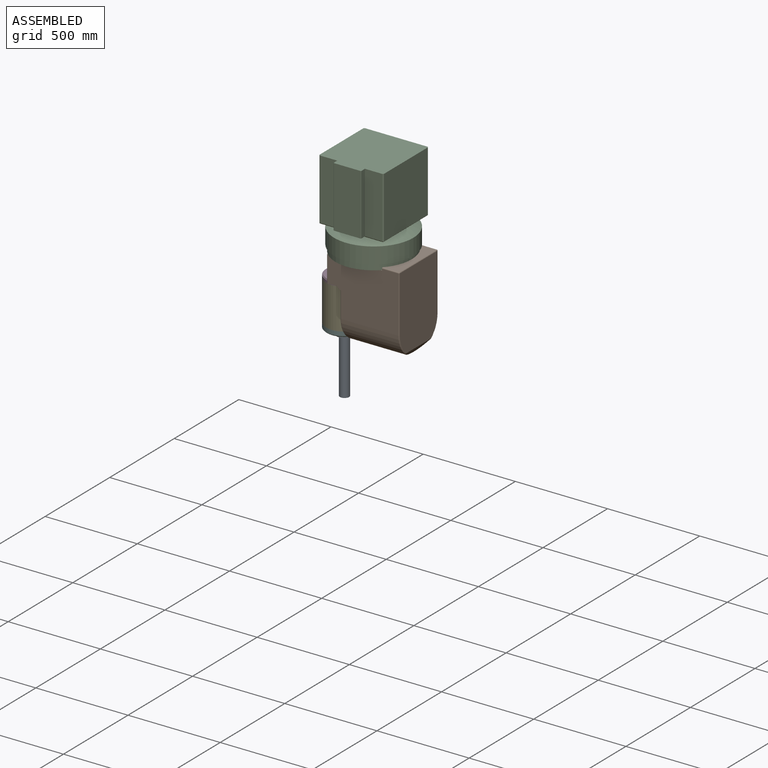
[diagram: assembled view]
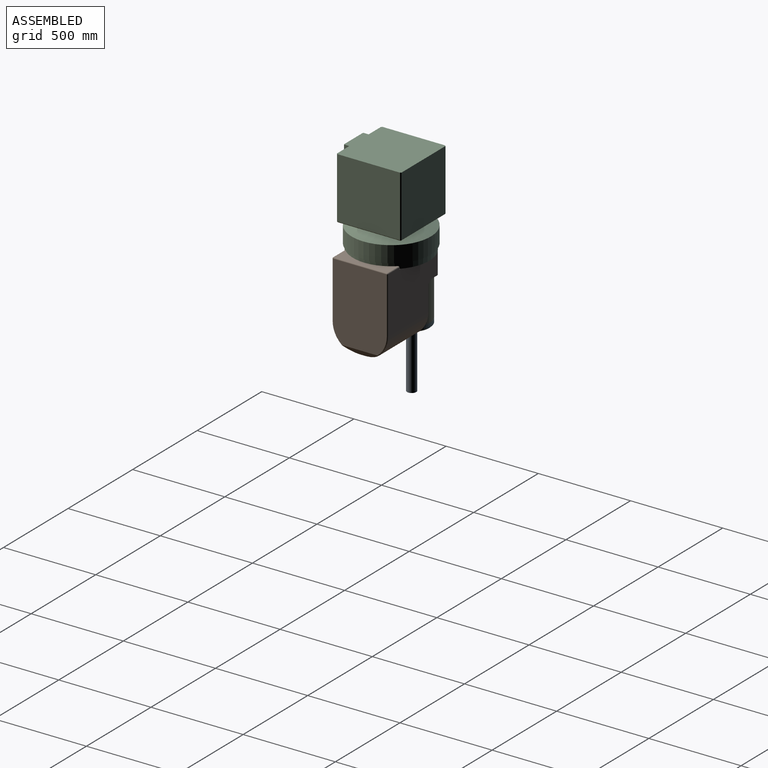
[diagram: assembled view, second angle]
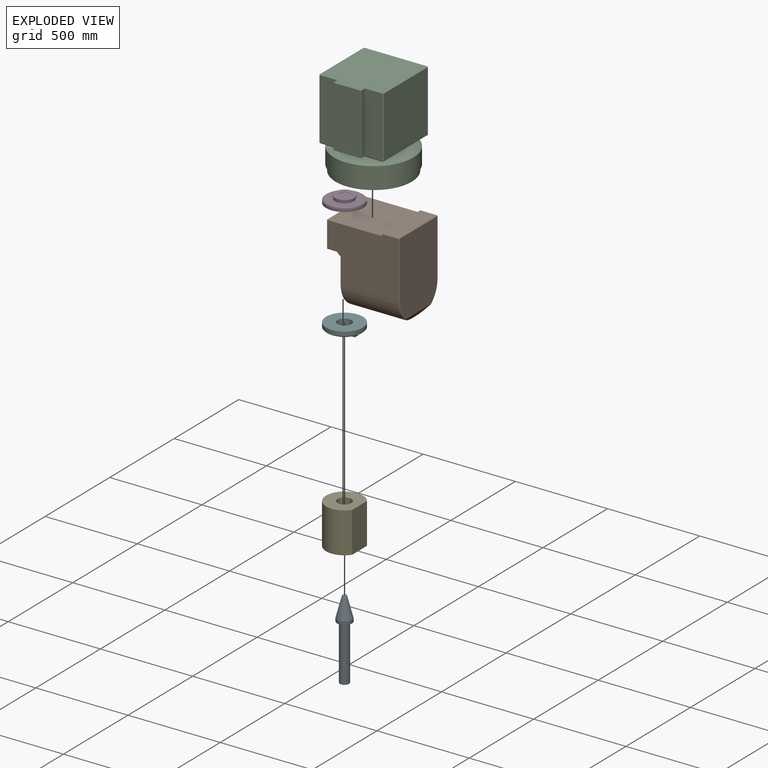
[diagram: exploded view]
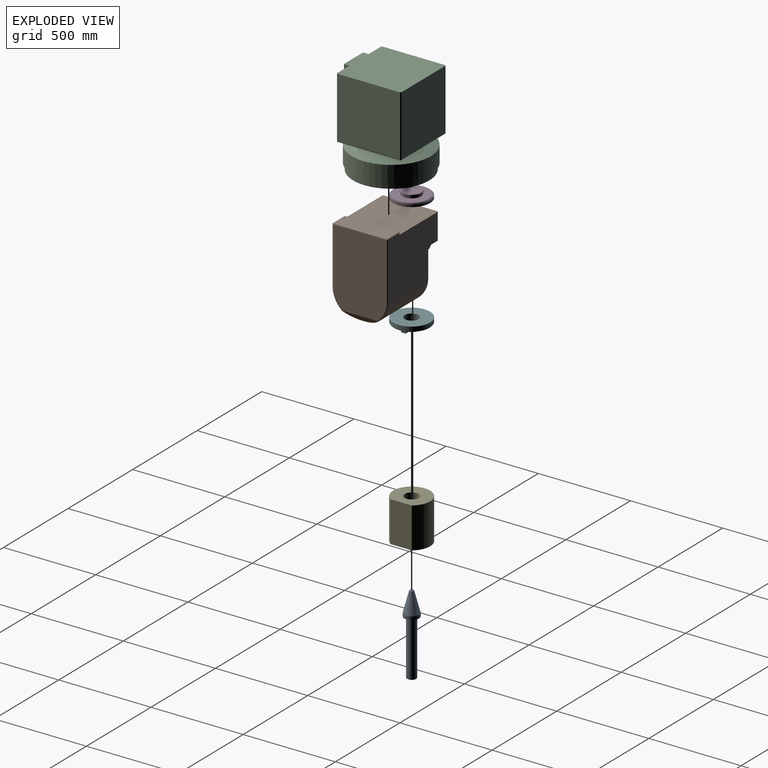
[diagram: exploded view, second angle]
ASSEMBLY  parts=6 mates=5
PART A: 11 faces, bbox 80.7x80.7x442.3 mm
  f0: cylinder r=40.34mm len=80.68mm, axis (0,0,1), area 4461mm2, adj f1,f10
  f1: cone r=40.34mm half-angle=14.8deg, axis (0,0,-1), area 18466mm2, adj f0,f2
  f2: plane 22.2x22.2mm, normal (0,0,1), area 376.6mm2, adj f1,f3
  f3: cylinder r=1.81mm len=9.98mm, axis (0,0,1), area 113.7mm2, adj f2,f4
  f4: plane 6.88x6.88mm, normal (0,0,-1), area 26.9mm2, adj f3,f5
  f5: cylinder r=3.44mm len=6.88mm, axis (0,0,1), area 44.8mm2, adj f4,f6
  f6: cone r=2.26mm half-angle=28.1deg, axis (0,0,-1), area 45mm2, adj f5,f7
  f7: plane 4.51x4.51mm, normal (0,0,1), area 16mm2, adj f6
  f8: plane 50x50mm, normal (0,0,-1), area 1963.5mm2, adj f9
  f9: cylinder r=25mm len=300mm, axis (0,0,1), area 47123.9mm2, adj f8,f10
  f10: plane 80.68x80.68mm, normal (0,0,-1), area 3149.1mm2, adj f0,f9
PART B: 42 faces, bbox 394.1x323.6x462.1 mm
  f0: plane 290x137.37mm, normal (-1,0,0), area 28709.2mm2, adj f9,f19,f20,f38
  f1: plane 54.84x5mm, normal (0,0,-1), area 268.9mm2, adj f2,f14,f20,f37
  f2: plane 15.07x15.04mm, normal (-0.71,0,-0.71), area 106.4mm2, adj f1,f3,f14,f37
  f3: plane 8.64x5mm, normal (0,0,-1), area 23.6mm2, adj f2,f14,f23,f37
  f4: plane 287.35x20mm, normal (0,0,-1), area 5747.1mm2, adj f21,f22,f25,f30
  f5: plane 194.72x33.14mm, normal (0.81,0,-0.59), area 5646.8mm2, adj f6,f28,f29,f30,f31,f32
  f6: plane 410.35x290mm, normal (1,0,0), area 115767mm2, adj f5,f16,f17,f18,f28,f32
  f7: plane 290x88.59mm, normal (0,0,1), area 25690.5mm2, adj f8,f18,f33,f35
  f8: plane 300x13.78mm, normal (-1,0,0), area 4124.7mm2, adj f7,f9,f14,f15,f33,f35
  f9: plane 300x299.94mm, normal (0,0,1), area 89970.1mm2, adj f0,f8,f14,f15,f19,f20
  f10: plane 54.84x5mm, normal (0,0,-1), area 268.9mm2, adj f11,f15,f19,f39
  f11: plane 15.07x15.04mm, normal (-0.71,0,-0.71), area 106.4mm2, adj f10,f12,f15,f39
  f12: plane 8.64x5mm, normal (0,0,-1), area 23.6mm2, adj f11,f15,f27,f39
  f13: plane 290x274.69mm, normal (-1,0,0), area 71838.9mm2, adj f23,f24,f25,f26,f27,f40
  f14: plane 383.52x305mm, normal (0,-1,0), area 103245.8mm2, adj f1,f2,f3,f8,f9,f16,f20,f22
  f15: plane 383.52x305mm, normal (0,1,0), area 103245.8mm2, adj f8,f9,f10,f11,f12,f17,f19,f21
  f16: cylinder r=5mm len=305mm, axis (0,0,-1), area 2395.5mm2, adj f6,f14,f28,f36
  f17: cylinder r=5mm len=305mm, axis (0,0,1), area 2395.5mm2, adj f6,f15,f32,f34
  f18: cylinder r=5mm len=290mm, axis (0,1,0), area 2277.7mm2, adj f6,f7,f34,f36
  f19: cylinder r=5mm len=141.41mm, axis (0,0,-1), area 1110.7mm2, adj f0,f9,f10,f15,f39
  f20: cylinder r=5mm len=141.41mm, axis (0,0,1), area 1110.7mm2, adj f0,f1,f9,f14,f37
  f21: cylinder r=140mm len=310mm, axis (1,0,0), area 67071.7mm2, adj f4,f15,f26,f31,f32
  f22: cylinder r=140mm len=310mm, axis (-1,0,0), area 67071.7mm2, adj f4,f14,f24,f28,f29
  f23: cylinder r=5mm len=139.73mm, axis (0,0,1), area 1097.4mm2, adj f3,f13,f14,f24,f37
  f24: torus R=135mm, axis (-1,0,0), area 1704.8mm2, adj f13,f22,f23,f25
  f25: cylinder r=5mm len=20mm, axis (0,-1,0), area 157.1mm2, adj f4,f13,f24,f26
  f26: torus R=135mm, axis (-1,0,0), area 1704.8mm2, adj f13,f21,f25,f27
  f27: cylinder r=5mm len=139.73mm, axis (0,0,-1), area 1097.4mm2, adj f12,f13,f15,f26,f39
  f28: torus R=135mm, axis (1,0,0), area 958mm2, adj f5,f6,f16,f22,f29
  f29: bspline ~90.3x33.91mm, area 498.2mm2, adj f5,f22,f28,f30
  f30: cylinder r=5mm len=20mm, axis (0,1,0), area 94.4mm2, adj f4,f5,f29,f31
  f31: bspline ~90.3x33.91mm, area 498.2mm2, adj f5,f21,f30,f32
  f32: torus R=135mm, axis (1,0,0), area 958mm2, adj f5,f6,f17,f21,f31
  f33: cylinder r=5mm len=88.59mm, axis (-1,0,0), area 695.8mm2, adj f7,f8,f15,f34
  f34: sphere r=5mm, area 39.3mm2, adj f17,f18,f33
  f35: cylinder r=5mm len=88.59mm, axis (1,0,0), area 695.8mm2, adj f7,f8,f14,f36
  f36: sphere r=5mm, area 39.3mm2, adj f16,f18,f35
  f37: plane 75x19.15mm, normal (0,1,0), area 493.8mm2, adj f1,f2,f3,f20,f23,f38,f40,f41
  f38: cylinder r=215.93mm len=290mm, axis (-1,0,0), area 23846.9mm2, adj f0,f37,f39,f41
  f39: plane 75x19.15mm, normal (0,-1,0), area 493.8mm2, adj f10,f11,f12,f19,f27,f38,f40,f41
  f40: plane 290x1.48mm, normal (0,0,1), area 428mm2, adj f13,f37,f39,f41
  f41: plane 290x75.08mm, normal (-1,0,0), area 16682.1mm2, adj f37,f38,f39,f40
PART C: 26 faces, bbox 430x430x488.5 mm
  f0: plane 331x95mm, normal (0,-1,0), area 31445mm2, adj f11,f15,f18,f20
  f1: plane 331x95mm, normal (0,-1,0), area 31445mm2, adj f11,f15,f16,f21
  f2: cone r=215mm half-angle=63deg, axis (0,0,-1), area 80575.6mm2, adj f3,f10
  f3: cylinder r=215mm len=430mm, axis (0,0,1), area 120262.1mm2, adj f2,f4
  f4: plane 430x430mm, normal (0,0,-1), area 10413.1mm2, adj f3,f5
  f5: cylinder r=207.15mm len=414.3mm, axis (0,0,1), area 41388.5mm2, adj f4,f6
  f6: plane 414.3x414.3mm, normal (0,0,-1), area 134807.1mm2, adj f5
  f7: plane 340x331mm, normal (0,1,0), area 112540mm2, adj f11,f12,f17,f19
  f8: plane 340x331mm, normal (-1,0,0), area 112540mm2, adj f11,f13,f16,f17
  f9: plane 340x331mm, normal (1,0,0), area 112540mm2, adj f11,f14,f18,f19
  f10: plane 340x340mm, normal (0,0,-1), area 42150.8mm2, adj f2,f12,f13,f14,f15
  f11: plane 380x350mm, normal (0,0,1), area 126946mm2, adj f0,f1,f7,f8,f9,f16,f17,f18
  f12: plane 345x5mm, normal (0,0.71,-0.71), area 2421.8mm2, adj f7,f10,f13,f14,f17,f19
  f13: plane 345x5mm, normal (-0.71,0,-0.71), area 2421.8mm2, adj f8,f10,f12,f15,f16,f17
  f14: plane 345x5mm, normal (0.71,0,-0.71), area 2421.8mm2, adj f9,f10,f12,f15,f18,f19
  f15: plane 345x5mm, normal (0,-0.71,-0.71), area 2421.8mm2, adj f0,f1,f10,f13,f14,f16,f18,f22
  f16: plane 333.5x5mm, normal (-0.71,-0.71,0), area 2349.4mm2, adj f1,f8,f11,f13,f15
  f17: plane 333.5x5mm, normal (-0.71,0.71,0), area 2349.4mm2, adj f7,f8,f11,f12,f13
  f18: plane 333.5x5mm, normal (0.71,-0.71,0), area 2349.4mm2, adj f0,f9,f11,f14,f15
  f19: plane 333.5x5mm, normal (0.71,0.71,0), area 2349.4mm2, adj f7,f9,f11,f12,f14
  f20: plane 331x28mm, normal (1,0,0), area 9268mm2, adj f0,f11,f22,f24
  f21: plane 331x28mm, normal (-1,0,0), area 9268mm2, adj f1,f11,f22,f25
  f22: plane 150x30mm, normal (0,0,-1), area 4496mm2, adj f15,f20,f21,f23,f24,f25
  f23: plane 331x146mm, normal (0,-1,0), area 48326mm2, adj f11,f22,f24,f25
  f24: plane 331x2mm, normal (0.71,-0.71,0), area 936.2mm2, adj f11,f20,f22,f23
  f25: plane 331x2mm, normal (-0.71,-0.71,0), area 936.2mm2, adj f11,f21,f22,f23
PART D: 13 faces, bbox 200x200x40 mm
  f0: plane 109.15x109.15mm, normal (0,0,-1), area 1503.8mm2, adj f1,f10
  f1: cylinder r=54.58mm len=109.15mm, axis (0,0,1), area 1714.6mm2, adj f0,f2
  f2: cone r=54.58mm half-angle=52deg, axis (0,0,-1), area 799mm2, adj f1,f3
  f3: plane 105.42x105.42mm, normal (0,0,1), area 6352.2mm2, adj f2,f11
  f4: plane 200x200mm, normal (0,0,-1), area 31415.9mm2, adj f5
  f5: cylinder r=100mm len=200mm, axis (0,0,1), area 8983.9mm2, adj f4,f6
  f6: plane 200x200mm, normal (0,0,1), area 2337.9mm2, adj f5,f7
  f7: cylinder r=96.21mm len=192.41mm, axis (0,0,1), area 1793.1mm2, adj f6,f8
  f8: cone r=96.21mm half-angle=57.7deg, axis (0,0,-1), area 2590mm2, adj f7,f9
  f9: plane 185.03x185.03mm, normal (0,0,1), area 19034.3mm2, adj f8,f10
  f10: cylinder r=50mm len=100mm, axis (0,0,1), area 4380.4mm2, adj f0,f9
  f11: cylinder r=27.5mm len=55mm, axis (0,0,1), area 345.6mm2, adj f3,f12
  f12: plane 55x55mm, normal (0,0,1), area 2375.8mm2, adj f11
PART E: 5 faces, bbox 181.7x200x220 mm
  f0: plane 220x115.32mm, normal (1,0,0), area 25370.2mm2, adj f2,f3,f4
  f1: cylinder r=37.5mm len=220mm, axis (0,0,-1), area 51836.3mm2, adj f3,f4
  f2: cylinder r=100mm len=220mm, axis (0,0,-1), area 111189.7mm2, adj f0,f3,f4
  f3: plane 200x181.7mm, normal (0,0,1), area 25563.5mm2, adj f0,f1,f2
  f4: plane 200x181.7mm, normal (0,0,-1), area 25563.5mm2, adj f0,f1,f2
PART F: 25 faces, bbox 200x200x53 mm
  f0: plane 130x127.57mm, normal (0,0,-1), area 7625.5mm2, adj f4,f5,f8,f10,f11,f14,f15,f17
  f1: cylinder r=100mm len=200mm, axis (0,0,-1), area 14451.3mm2, adj f2,f24
  f2: plane 200x200mm, normal (0,0,1), area 26998.1mm2, adj f1,f4
  f3: plane 190x190mm, normal (0,0,-1), area 15079.6mm2, adj f5,f24
  f4: cylinder r=37.5mm len=75mm, axis (0,0,1), area 10131.6mm2, adj f0,f2
  f5: cylinder r=65mm len=130mm, axis (0,0,1), area 6126.1mm2, adj f0,f3,f6,f7,f13,f19
  f6: plane 12.5x1.21mm, normal (0,0,1), area 5mm2, adj f5,f9,f10
  f7: plane 12.5x1.21mm, normal (0,0,1), area 5mm2, adj f5,f8,f9
  f8: plane 25x10mm, normal (0,1,0), area 250mm2, adj f0,f7,f9,f11,f12
  f9: plane 25x10mm, normal (1,0,0), area 250mm2, adj f6,f7,f8,f10,f12
  f10: plane 25x10mm, normal (0,-1,0), area 250mm2, adj f0,f6,f9,f11,f12
  f11: plane 25x10mm, normal (-1,0,0), area 250mm2, adj f0,f8,f10,f12
  f12: plane 25x25mm, normal (0,0,-1), area 511.9mm2, adj f8,f9,f10,f11,f22
  f13: plane 12.5x1.21mm, normal (0,0,1), area 5mm2, adj f5,f15,f16
  f14: plane 25x10mm, normal (1,0,0), area 250mm2, adj f0,f15,f17,f18
  f15: plane 25x10mm, normal (0,-1,0), area 250mm2, adj f0,f13,f14,f16,f18
  f16: plane 25x10mm, normal (-1,0,0), area 250mm2, adj f13,f15,f17,f18,f19
  f17: plane 25x10mm, normal (0,1,0), area 250mm2, adj f0,f14,f16,f18,f19
  f18: plane 25x25mm, normal (0,0,-1), area 511.9mm2, adj f14,f15,f16,f17,f20
  f19: plane 12.5x1.21mm, normal (0,0,1), area 5mm2, adj f5,f16,f17
  f20: cylinder r=6mm len=12mm, axis (0,0,-1), area 75.4mm2, adj f18,f21
  f21: plane 12x12mm, normal (0,0,-1), area 113.1mm2, adj f20
  f22: cylinder r=6mm len=12mm, axis (0,0,-1), area 75.4mm2, adj f12,f23
  f23: plane 12x12mm, normal (0,0,-1), area 113.1mm2, adj f22
  f24: cone r=100mm half-angle=45deg, axis (0,0,1), area 4331.8mm2, adj f1,f3
PLACE A t=(117.07,295.79,180.2)mm
PLACE B t=(334.56,445.79,623.17)mm
PLACE C t=(234.19,295.79,838.65)mm
PLACE D t=(117.07,295.79,545.63)mm
PLACE E t=(117.07,295.79,325.63)mm
PLACE F t=(117.07,295.79,297.63)mm
MATE fastened F.f1 <-> A.f0  axis (0,0,-1) through (117.07,295.79,282.63)mm
MATE fastened F.f1 <-> E.f1  axis (0,0,1) through (117.07,295.79,325.63)mm
MATE fastened B.f13 <-> E.f0  axis (-1,0,0) through (198.77,295.79,435.63)mm
MATE fastened B.f9 <-> C.f2  axis (0,0,1) through (275.23,295.79,717.82)mm
MATE fastened E.f1 <-> D.f1  axis (0,0,1) through (117.07,295.79,545.63)mm
